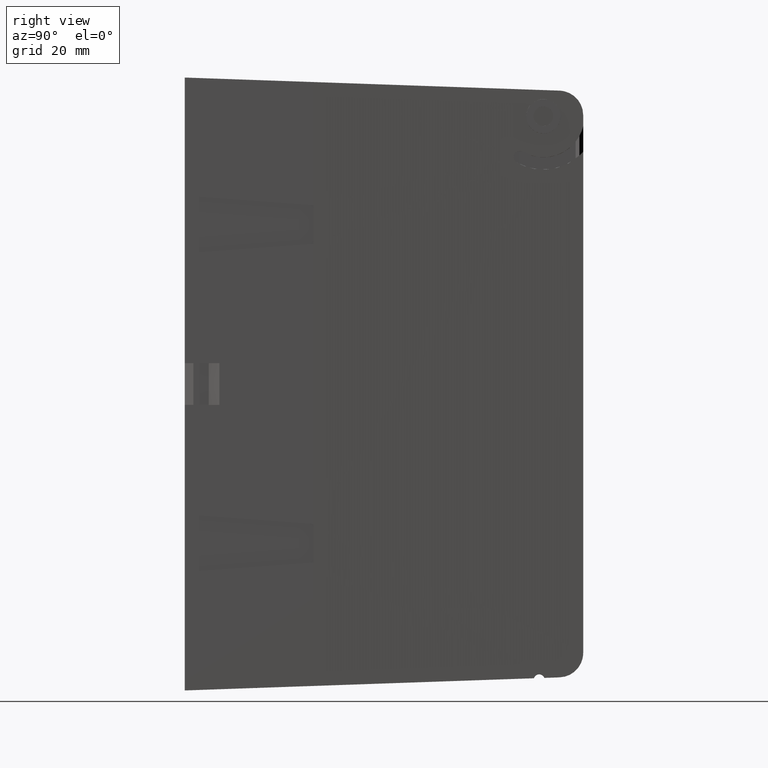
[diagram: clean part render]
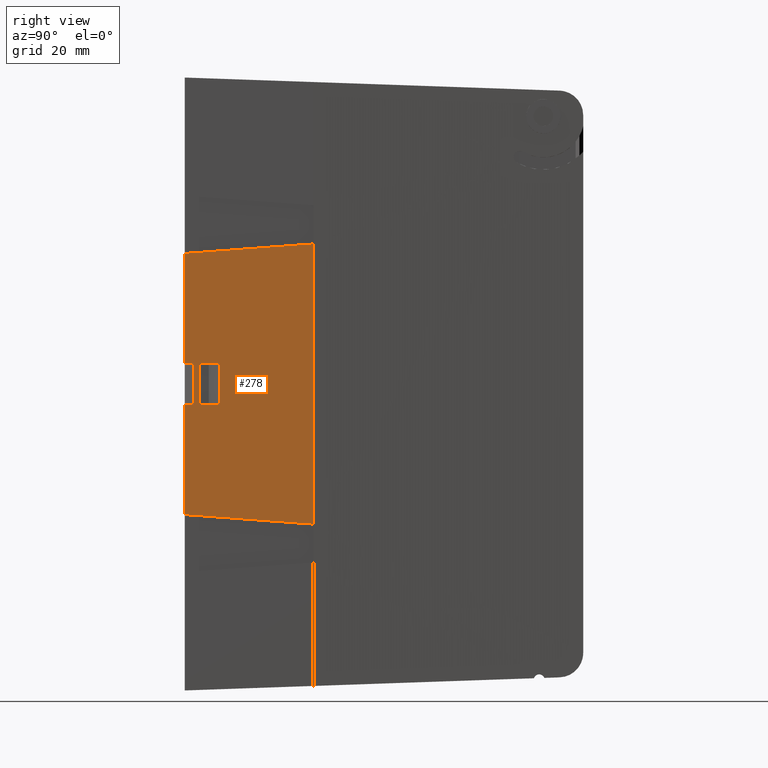
[diagram: same view with one face highlighted and labeled with its STEP entity id]
A machine part, right view. The second image highlights one B-rep face of the part: STEP entity #278.
In plain terms, the highlighted planar face has unit normal (-1, 0, 0).
Its self-contained STEP definition (entity closure, byte-faithful):
#7 = VERTEX_POINT ( 'NONE', #479 ) ;
#36 = DIRECTION ( 'NONE',  ( -1.216239079820384600E-016, -0.9972646886342373400, 0.07391306246704761100 ) ) ;
#45 = CARTESIAN_POINT ( 'NONE',  ( 0.06800000000000006000, 1.049999999999999600, -1.142821581847729600 ) ) ;
#54 = ORIENTED_EDGE ( 'NONE', *, *, #1318, .T. ) ;
#63 = ORIENTED_EDGE ( 'NONE', *, *, #1218, .F. ) ;
#66 = VERTEX_POINT ( 'NONE', #406 ) ;
#78 = CARTESIAN_POINT ( 'NONE',  ( 0.06800000000000000500, 2.731847993664263200E-016, 2.500000000000000000 ) ) ;
#85 = DIRECTION ( 'NONE',  ( 0.0000000000000000000, 0.0000000000000000000, -1.000000000000000000 ) ) ;
#96 = VECTOR ( 'NONE', #266, 39.37007874015748100 ) ;
#101 = DIRECTION ( 'NONE',  ( 0.0000000000000000000, -0.0000000000000000000, 1.000000000000000000 ) ) ;
#103 = CARTESIAN_POINT ( 'NONE',  ( 0.06800000000000001900, 0.07000000000000034000, -0.1699999999999999800 ) ) ;
#183 = VERTEX_POINT ( 'NONE', #1246 ) ;
#198 = VERTEX_POINT ( 'NONE', #1248 ) ;
#202 = LINE ( 'NONE', #78, #542 ) ;
#241 = CARTESIAN_POINT ( 'NONE',  ( 0.06800000000000000500, 0.2816025403784454500, 0.1699999999999999800 ) ) ;
#246 = EDGE_CURVE ( 'NONE', #1320, #198, #790, .T. ) ;
#257 = CARTESIAN_POINT ( 'NONE',  ( 0.06800000000000000500, 2.731847993664263200E-016, 0.1700000000000001000 ) ) ;
#266 = DIRECTION ( 'NONE',  ( 0.0000000000000000000, 1.000000000000000000, -0.0000000000000000000 ) ) ;
#271 = CARTESIAN_POINT ( 'NONE',  ( 0.06800000000000000500, 2.731847993664263200E-016, -0.1699999999999999800 ) ) ;
#274 = VERTEX_POINT ( 'NONE', #1056 ) ;
#277 = LINE ( 'NONE', #336, #296 ) ;
#278 = ADVANCED_FACE ( 'NONE', ( #1030, #1264 ), #1027, .F. ) ;
#283 = DIRECTION ( 'NONE',  ( 1.219574997171545100E-016, 1.000000000000000000, -0.0000000000000000000 ) ) ;
#296 = VECTOR ( 'NONE', #320, 39.37007874015748100 ) ;
#315 = EDGE_CURVE ( 'NONE', #1098, #7, #568, .T. ) ;
#319 = CARTESIAN_POINT ( 'NONE',  ( 0.06800000000000001900, 0.07000000000000034000, -0.1699999999999999800 ) ) ;
#320 = DIRECTION ( 'NONE',  ( 0.0000000000000000000, 0.0000000000000000000, -1.000000000000000000 ) ) ;
#336 = CARTESIAN_POINT ( 'NONE',  ( 0.06800000000000013000, 1.050000000000000000, 2.500000000000000000 ) ) ;
#355 = CARTESIAN_POINT ( 'NONE',  ( 0.06800000000000000500, 0.2816025403784454500, -0.1699999999999999800 ) ) ;
#361 = DIRECTION ( 'NONE',  ( 0.0000000000000000000, -0.0000000000000000000, 1.000000000000000000 ) ) ;
#372 = CARTESIAN_POINT ( 'NONE',  ( 0.06799999999999990800, 1.050000000000000000, 1.142821581847730100 ) ) ;
#375 = VERTEX_POINT ( 'NONE', #892 ) ;
#406 = CARTESIAN_POINT ( 'NONE',  ( 0.06800000000000000500, 2.731847993664263200E-016, -0.1699999999999999800 ) ) ;
#479 = CARTESIAN_POINT ( 'NONE',  ( 0.06800000000000001900, 0.07000000000000034000, 0.1699999999999999800 ) ) ;
#505 = LINE ( 'NONE', #923, #602 ) ;
#514 = VERTEX_POINT ( 'NONE', #736 ) ;
#530 = EDGE_CURVE ( 'NONE', #1219, #274, #505, .T. ) ;
#534 = CARTESIAN_POINT ( 'NONE',  ( 0.06800000000000000500, 2.731847993664263200E-016, 2.500000000000000000 ) ) ;
#535 = VECTOR ( 'NONE', #361, 39.37007874015748100 ) ;
#542 = VECTOR ( 'NONE', #85, 39.37007874015748100 ) ;
#543 = CARTESIAN_POINT ( 'NONE',  ( 0.06800000000000000500, 0.1200000000000003600, -0.1699999999999999800 ) ) ;
#549 = DIRECTION ( 'NONE',  ( 0.0000000000000000000, 0.0000000000000000000, -1.000000000000000000 ) ) ;
#559 = ORIENTED_EDGE ( 'NONE', *, *, #246, .F. ) ;
#568 = LINE ( 'NONE', #1018, #1190 ) ;
#589 = ORIENTED_EDGE ( 'NONE', *, *, #530, .T. ) ;
#602 = VECTOR ( 'NONE', #921, 39.37007874015748100 ) ;
#609 = ORIENTED_EDGE ( 'NONE', *, *, #1204, .F. ) ;
#614 = ORIENTED_EDGE ( 'NONE', *, *, #902, .T. ) ;
#628 = VERTEX_POINT ( 'NONE', #45 ) ;
#690 = ORIENTED_EDGE ( 'NONE', *, *, #1126, .F. ) ;
#736 = CARTESIAN_POINT ( 'NONE',  ( 0.06800000000000000500, 0.1200000000000003600, 0.1699999999999999800 ) ) ;
#781 = ORIENTED_EDGE ( 'NONE', *, *, #315, .T. ) ;
#790 = LINE ( 'NONE', #1162, #1378 ) ;
#804 = EDGE_CURVE ( 'NONE', #1169, #7, #1075, .T. ) ;
#845 = EDGE_CURVE ( 'NONE', #66, #375, #202, .T. ) ;
#857 = ORIENTED_EDGE ( 'NONE', *, *, #845, .T. ) ;
#862 = EDGE_CURVE ( 'NONE', #628, #375, #1377, .T. ) ;
#880 = ORIENTED_EDGE ( 'NONE', *, *, #1100, .T. ) ;
#884 = DIRECTION ( 'NONE',  ( 0.0000000000000000000, -0.0000000000000000000, 1.000000000000000000 ) ) ;
#892 = CARTESIAN_POINT ( 'NONE',  ( 0.06799999999999994900, 2.731847993664263200E-016, -1.065000000000000200 ) ) ;
#902 = EDGE_CURVE ( 'NONE', #1320, #514, #908, .T. ) ;
#906 = LINE ( 'NONE', #271, #1081 ) ;
#908 = LINE ( 'NONE', #998, #1203 ) ;
#921 = DIRECTION ( 'NONE',  ( -1.147039941134920600E-016, -0.9972646886342373400, -0.07391306246704765200 ) ) ;
#923 = CARTESIAN_POINT ( 'NONE',  ( 0.06800000000000001900, 0.1057751231710367900, 1.072839607052675300 ) ) ;
#924 = DIRECTION ( 'NONE',  ( 1.219574997171545100E-016, 1.000000000000000000, -0.0000000000000000000 ) ) ;
#965 = AXIS2_PLACEMENT_3D ( 'NONE', #1111, #1112, #1104 ) ;
#975 = CARTESIAN_POINT ( 'NONE',  ( 0.06800000000000001900, -0.005528316542040115200, -1.064590264439755800 ) ) ;
#998 = CARTESIAN_POINT ( 'NONE',  ( 0.06800000000000000500, 0.1200000000000003600, -0.1699999999999999800 ) ) ;
#1018 = CARTESIAN_POINT ( 'NONE',  ( 0.06800000000000000500, 2.731847993664263200E-016, 0.1699999999999999800 ) ) ;
#1024 = ORIENTED_EDGE ( 'NONE', *, *, #862, .F. ) ;
#1027 = PLANE ( 'NONE',  #965 ) ;
#1030 = FACE_BOUND ( 'NONE', #1240, .T. ) ;
#1056 = CARTESIAN_POINT ( 'NONE',  ( 0.06799999999999968600, 2.731847993664263200E-016, 1.065000000000000200 ) ) ;
#1075 = LINE ( 'NONE', #103, #1214 ) ;
#1081 = VECTOR ( 'NONE', #283, 39.37007874015748100 ) ;
#1098 = VERTEX_POINT ( 'NONE', #257 ) ;
#1100 = EDGE_CURVE ( 'NONE', #514, #183, #1269, .T. ) ;
#1104 = DIRECTION ( 'NONE',  ( -1.219574997171544800E-016, -1.000000000000000000, 0.0000000000000000000 ) ) ;
#1111 = CARTESIAN_POINT ( 'NONE',  ( 0.06800000000000000500, 2.731847993664263200E-016, 2.500000000000000000 ) ) ;
#1112 = DIRECTION ( 'NONE',  ( -1.000000000000000000, 1.219574997171544800E-016, 0.0000000000000000000 ) ) ;
#1124 = LINE ( 'NONE', #534, #1361 ) ;
#1126 = EDGE_CURVE ( 'NONE', #66, #1169, #906, .T. ) ;
#1148 = ORIENTED_EDGE ( 'NONE', *, *, #804, .F. ) ;
#1162 = CARTESIAN_POINT ( 'NONE',  ( 0.06800000000000000500, 0.2816025403784454500, -0.1699999999999999800 ) ) ;
#1169 = VERTEX_POINT ( 'NONE', #319 ) ;
#1185 = DIRECTION ( 'NONE',  ( 0.0000000000000000000, 1.000000000000000000, -0.0000000000000000000 ) ) ;
#1190 = VECTOR ( 'NONE', #924, 39.37007874015748100 ) ;
#1203 = VECTOR ( 'NONE', #884, 39.37007874015748100 ) ;
#1204 = EDGE_CURVE ( 'NONE', #198, #183, #1371, .T. ) ;
#1214 = VECTOR ( 'NONE', #101, 39.37007874015748100 ) ;
#1218 = EDGE_CURVE ( 'NONE', #1219, #628, #277, .T. ) ;
#1219 = VERTEX_POINT ( 'NONE', #372 ) ;
#1240 = EDGE_LOOP ( 'NONE', ( #609, #559, #614, #880 ) ) ;
#1246 = CARTESIAN_POINT ( 'NONE',  ( 0.06800000000000004700, 0.2816025403784454500, 0.1700000000000001000 ) ) ;
#1248 = CARTESIAN_POINT ( 'NONE',  ( 0.06800000000000000500, 0.2816025403784454500, -0.1699999999999999800 ) ) ;
#1264 = FACE_OUTER_BOUND ( 'NONE', #1319, .T. ) ;
#1269 = LINE ( 'NONE', #241, #96 ) ;
#1306 = VECTOR ( 'NONE', #36, 39.37007874015748100 ) ;
#1318 = EDGE_CURVE ( 'NONE', #274, #1098, #1124, .T. ) ;
#1319 = EDGE_LOOP ( 'NONE', ( #690, #857, #1024, #63, #589, #54, #781, #1148 ) ) ;
#1320 = VERTEX_POINT ( 'NONE', #543 ) ;
#1361 = VECTOR ( 'NONE', #549, 39.37007874015748100 ) ;
#1371 = LINE ( 'NONE', #355, #535 ) ;
#1377 = LINE ( 'NONE', #975, #1306 ) ;
#1378 = VECTOR ( 'NONE', #1185, 39.37007874015748100 ) ;